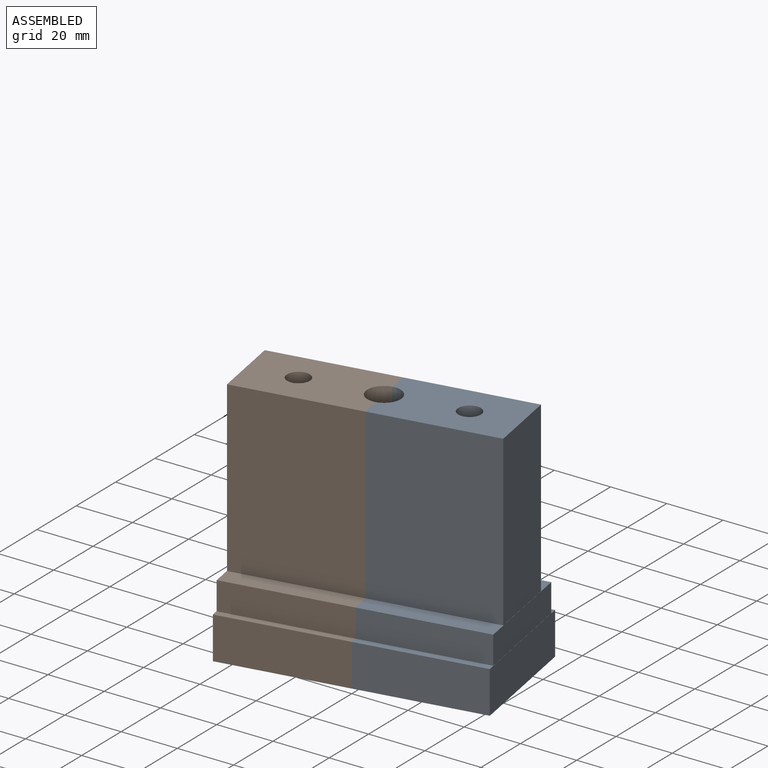
[diagram: assembled view]
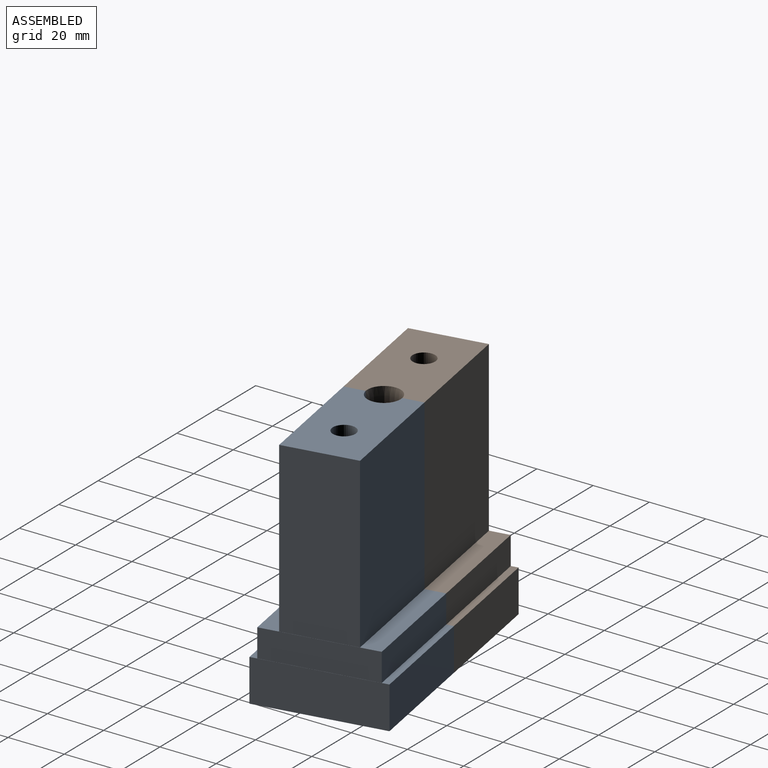
[diagram: assembled view, second angle]
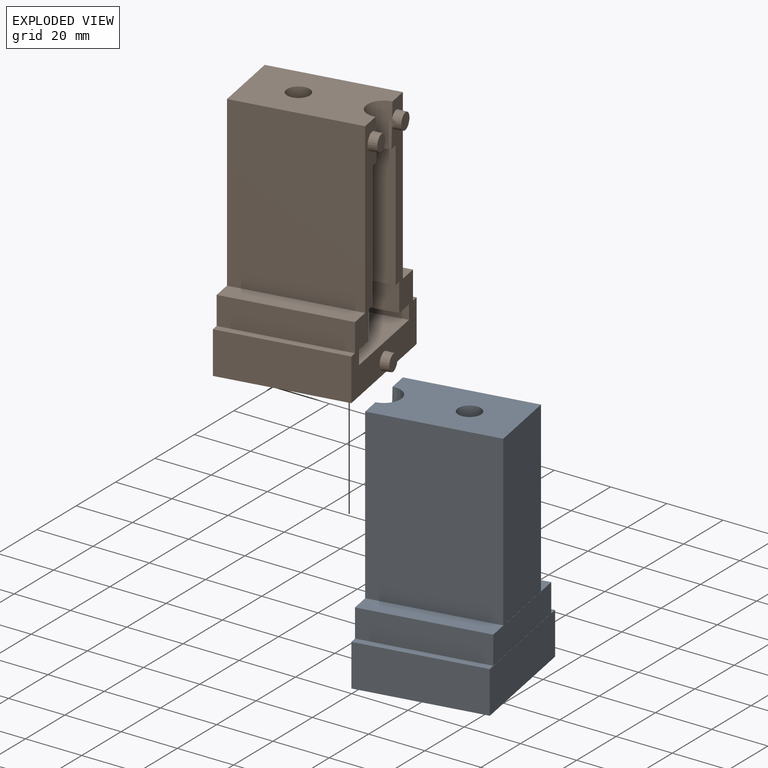
[diagram: exploded view]
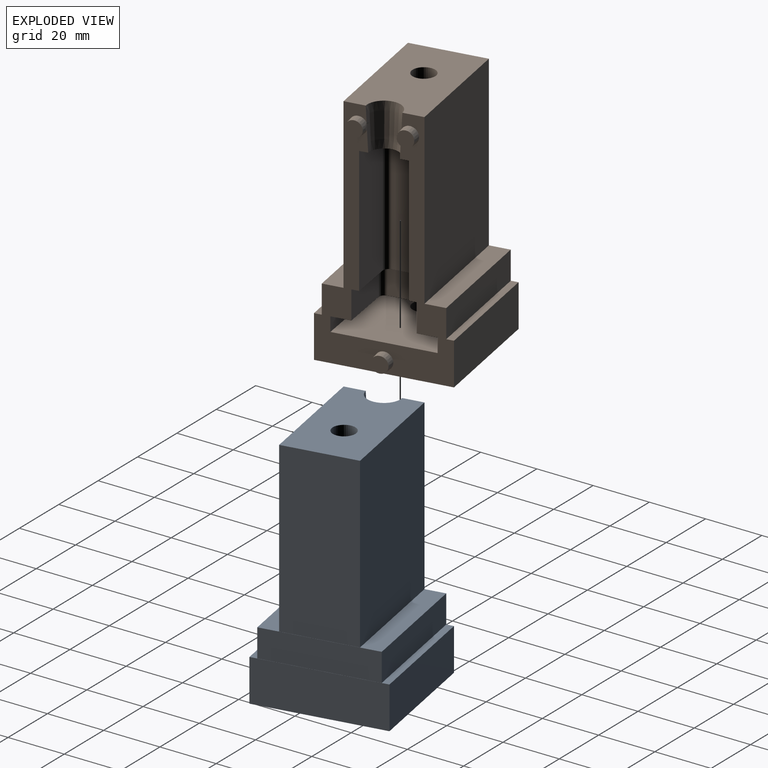
[diagram: exploded view, second angle]
ASSEMBLY  parts=2 mates=2
PART A: 42 faces, bbox 44.5x45x85 mm
  f0: plane 85x45mm, normal (-1,0,0), area 1284mm2, adj f1,f2,f3,f7,f8,f12,f13,f14
  f1: plane 17.5x16mm, normal (0,0,-1), area 232.3mm2, adj f0,f2,f3,f4,f5,f6,f41
  f2: plane 45x15.54mm, normal (-0.02,1,0), area 699.2mm2, adj f0,f1,f6,f7
  f3: plane 45x15.54mm, normal (-0.02,-1,0), area 699.2mm2, adj f0,f1,f4,f7
  f4: cylinder r=2mm len=45mm, axis (0,0,-1), area 139.8mm2, adj f1,f3,f5,f7
  f5: plane 45x11.46mm, normal (-1,0,0), area 515.6mm2, adj f1,f4,f6,f7
  f6: cylinder r=2mm len=45mm, axis (0,0,-1), area 139.8mm2, adj f1,f2,f5,f7
  f7: plane 21x20mm, normal (0,0,-1), area 138.4mm2, adj f0,f2,f3,f4,f5,f6,f8,f9
  f8: plane 18.04x10mm, normal (-0.02,-1,0), area 180.4mm2, adj f0,f7,f9,f13
  f9: cylinder r=2mm len=10mm, axis (0,0,-1), area 31.1mm2, adj f7,f8,f10,f13
  f10: plane 16.37x10mm, normal (-1,0,0), area 163.7mm2, adj f7,f9,f11,f13
  f11: cylinder r=2mm len=10mm, axis (0,0,1), area 31.1mm2, adj f7,f10,f12,f13
  f12: plane 18.04x10mm, normal (-0.02,1,0), area 180.4mm2, adj f0,f7,f11,f13
  f13: plane 39.5x34.5mm, normal (0,0,-1), area 872.2mm2, adj f0,f8,f9,f10,f11,f12,f14,f15
  f14: plane 37.54x5mm, normal (-0.02,1,0), area 187.7mm2, adj f0,f13,f17,f18
  f15: plane 29.19x5mm, normal (-1,0,0), area 146mm2, adj f13,f17,f18,f19
  f16: plane 37.54x5mm, normal (-0.02,-1,0), area 187.7mm2, adj f0,f13,f17,f19
  f17: plane 39.5x34.5mm, normal (0,0,1), area 1283.6mm2, adj f0,f14,f15,f16,f18,f19,f20
  f18: cylinder r=2mm len=5mm, axis (0,0,1), area 15.5mm2, adj f13,f14,f15,f17
  f19: cylinder r=2mm len=5mm, axis (0,0,-1), area 15.5mm2, adj f13,f15,f16,f17
  f20: cylinder r=4mm len=10mm, axis (0,0,1), area 251.3mm2, adj f17,f34
  f21: cylinder r=4mm len=70mm, axis (0,0,1), area 1759.3mm2, adj f13,f25
  f22: plane 60x26mm, normal (1,0,0), area 1560mm2, adj f23,f24,f25,f26
  f23: plane 60x44.4mm, normal (0,1,0), area 2664mm2, adj f0,f22,f25,f26
  f24: plane 60x44.4mm, normal (0,-1,0), area 2664mm2, adj f0,f22,f25,f26
  f25: plane 44.4x26mm, normal (0,0,1), area 1049.9mm2, adj f0,f21,f22,f23,f24,f41
  f26: plane 44.45x40mm, normal (0,0,1), area 623.6mm2, adj f0,f22,f23,f24,f27,f28,f29
  f27: plane 40x10mm, normal (1,0,0), area 400mm2, adj f26,f28,f29,f30
  f28: plane 44.45x10mm, normal (0,-1,0), area 444.5mm2, adj f0,f26,f27,f30
  f29: plane 44.45x10mm, normal (0,1,0), area 444.5mm2, adj f0,f26,f27,f30
  f30: plane 45x44.5mm, normal (0,0,1), area 224.5mm2, adj f0,f27,f28,f29,f31,f32,f33
  f31: plane 45x15mm, normal (1,0,0), area 675mm2, adj f30,f32,f33,f34
  f32: plane 44.5x15mm, normal (0,-1,0), area 667.5mm2, adj f0,f30,f31,f34
  f33: plane 44.5x15mm, normal (0,1,0), area 667.5mm2, adj f0,f30,f31,f34
  f34: plane 45x44.5mm, normal (0,0,-1), area 1952.2mm2, adj f0,f20,f31,f32,f33
  f35: cone r=3mm half-angle=3deg, axis (-1,0,0), area 52.7mm2, adj f0,f36,f41
  f36: plane 5.69x5.69mm, normal (-1,0,0), area 25.4mm2, adj f35
  f37: cone r=3mm half-angle=3deg, axis (-1,0,0), area 55.1mm2, adj f0,f38
  f38: plane 5.69x5.69mm, normal (-1,0,0), area 25.4mm2, adj f37
  f39: cone r=3mm half-angle=3deg, axis (-1,0,0), area 52.7mm2, adj f0,f40,f41
  f40: plane 5.69x5.69mm, normal (-1,0,0), area 25.4mm2, adj f39
  f41: cone r=5.09mm half-angle=3deg, axis (0,0,1), area 253.8mm2, adj f0,f1,f25,f35,f39
PART B: 42 faces, bbox 47.5x45x85 mm
  f0: plane 17.5x16mm, normal (0,0,-1), area 232.3mm2, adj f1,f2,f3,f4,f5,f34,f41
  f1: plane 45x15.54mm, normal (-0.02,1,0), area 699.2mm2, adj f0,f5,f6,f34
  f2: plane 45x15.54mm, normal (-0.02,-1,0), area 699.2mm2, adj f0,f3,f6,f34
  f3: cylinder r=2mm len=45mm, axis (0,0,-1), area 139.8mm2, adj f0,f2,f4,f6
  f4: plane 45x11.46mm, normal (-1,0,0), area 515.6mm2, adj f0,f3,f5,f6
  f5: cylinder r=2mm len=45mm, axis (0,0,-1), area 139.8mm2, adj f0,f1,f4,f6
  f6: plane 21x20mm, normal (0,0,-1), area 138.4mm2, adj f1,f2,f3,f4,f5,f7,f8,f9
  f7: plane 18.04x10mm, normal (-0.02,-1,0), area 180.4mm2, adj f6,f8,f12,f34
  f8: cylinder r=2mm len=10mm, axis (0,0,-1), area 31.1mm2, adj f6,f7,f9,f12
  f9: plane 16.37x10mm, normal (-1,0,0), area 163.7mm2, adj f6,f8,f10,f12
  f10: cylinder r=2mm len=10mm, axis (0,0,1), area 31.1mm2, adj f6,f9,f11,f12
  f11: plane 18.04x10mm, normal (-0.02,1,0), area 180.4mm2, adj f6,f10,f12,f34
  f12: plane 39.5x34.5mm, normal (0,0,-1), area 872.2mm2, adj f7,f8,f9,f10,f11,f13,f14,f15
  f13: plane 37.54x5mm, normal (-0.02,1,0), area 187.7mm2, adj f12,f16,f17,f34
  f14: plane 29.19x5mm, normal (-1,0,0), area 146mm2, adj f12,f16,f17,f18
  f15: plane 37.54x5mm, normal (-0.02,-1,0), area 187.7mm2, adj f12,f16,f18,f34
  f16: plane 39.5x34.5mm, normal (0,0,1), area 1283.6mm2, adj f13,f14,f15,f17,f18,f19,f34
  f17: cylinder r=2mm len=5mm, axis (0,0,1), area 15.5mm2, adj f12,f13,f14,f16
  f18: cylinder r=2mm len=5mm, axis (0,0,-1), area 15.5mm2, adj f12,f14,f15,f16
  f19: cylinder r=4mm len=10mm, axis (0,0,1), area 251.3mm2, adj f16,f33
  f20: cylinder r=4mm len=70mm, axis (0,0,1), area 1759.3mm2, adj f12,f24
  f21: plane 60x26mm, normal (1,0,0), area 1560mm2, adj f22,f23,f24,f25
  f22: plane 60x44.4mm, normal (0,1,0), area 2664mm2, adj f21,f24,f25,f34
  f23: plane 60x44.4mm, normal (0,-1,0), area 2664mm2, adj f21,f24,f25,f34
  f24: plane 44.4x26mm, normal (0,0,1), area 1049.9mm2, adj f20,f21,f22,f23,f34,f41
  f25: plane 44.45x40mm, normal (0,0,1), area 623.6mm2, adj f21,f22,f23,f26,f27,f28,f34
  f26: plane 40x10mm, normal (1,0,0), area 400mm2, adj f25,f27,f28,f29
  f27: plane 44.45x10mm, normal (0,-1,0), area 444.5mm2, adj f25,f26,f29,f34
  f28: plane 44.45x10mm, normal (0,1,0), area 444.5mm2, adj f25,f26,f29,f34
  f29: plane 45x44.5mm, normal (0,0,1), area 224.5mm2, adj f26,f27,f28,f30,f31,f32,f34
  f30: plane 45x15mm, normal (1,0,0), area 675mm2, adj f29,f31,f32,f33
  f31: plane 44.5x15mm, normal (0,-1,0), area 667.5mm2, adj f29,f30,f33,f34
  f32: plane 44.5x15mm, normal (0,1,0), area 667.5mm2, adj f29,f30,f33,f34
  f33: plane 45x44.5mm, normal (0,0,-1), area 1952.2mm2, adj f19,f30,f31,f32,f34
  f34: plane 85x45mm, normal (-1,0,0), area 1284mm2, adj f0,f1,f2,f6,f7,f11,f12,f13
  f35: cone r=3mm half-angle=3deg, axis (1,0,0), area 52.7mm2, adj f34,f36,f41
  f36: plane 5.69x5.69mm, normal (-1,0,0), area 25.4mm2, adj f35
  f37: cone r=3mm half-angle=3deg, axis (1,0,0), area 55.1mm2, adj f34,f38
  f38: plane 5.69x5.69mm, normal (-1,0,0), area 25.4mm2, adj f37
  f39: cone r=3mm half-angle=3deg, axis (1,0,0), area 52.7mm2, adj f34,f40,f41
  f40: plane 5.69x5.69mm, normal (-1,0,0), area 25.4mm2, adj f39
  f41: cone r=5.09mm half-angle=3deg, axis (0,0,1), area 263.6mm2, adj f0,f24,f34,f35,f39
PLACE A rot(axis=(0,0,1),10deg) t=(-143.42,-38.71,-75.27)mm
PLACE B rot(axis=(0,0,-1),170deg) t=(-143.42,-38.71,-75.27)mm
MATE planar A.f34 <-> B.f33  axis (0,0,-1) through (-121.64,-34.87,-100.27)mm
MATE planar A.f0 <-> B.f34  axis (-0.98,-0.17,0) through (-143.42,-38.71,-68.3)mm
